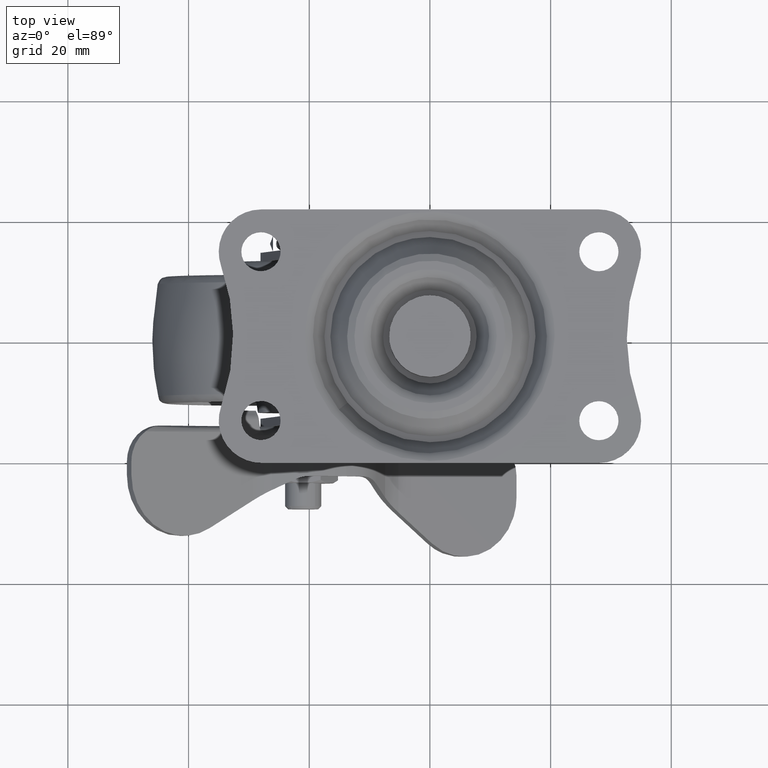
[diagram: clean part render]
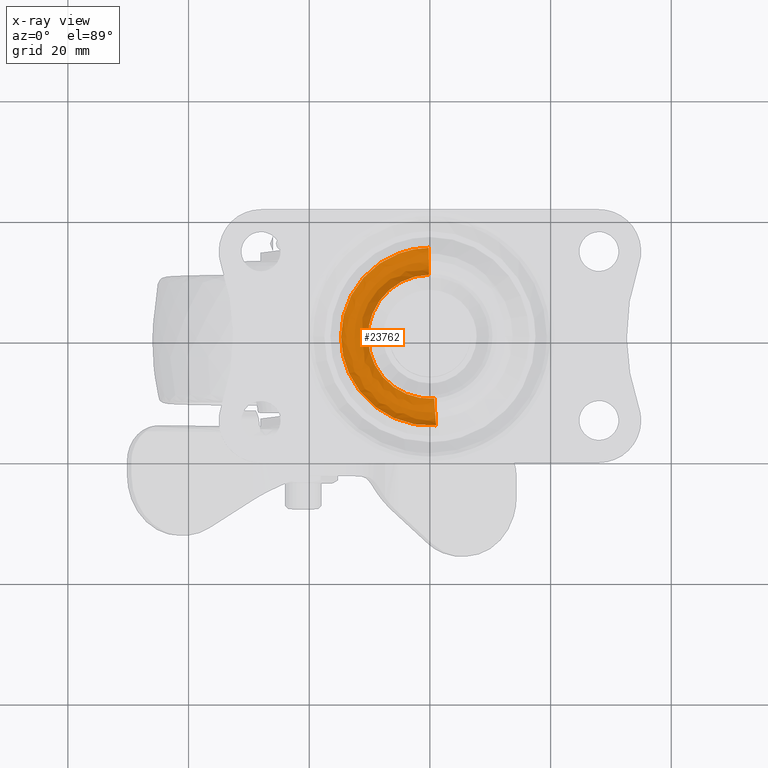
[diagram: x-ray — body ghosted, one internal face saturated and labeled with its STEP entity id]
A machine part, top view, then the same camera in x-ray: the body is ghosted and one INTERNAL B-rep face — a face not visible from any outside direction — is saturated and labeled: STEP entity #23762.
In plain terms, the highlighted face is a freeform B-spline surface patch.
Its self-contained STEP definition (entity closure, byte-faithful):
#23606=CARTESIAN_POINT('',(1.254466346812317,-14.787687954244289,-4.652776239736873));
#23607=CARTESIAN_POINT('',(1.144314758234576,-14.795387920818039,-4.652776239736872));
#23608=CARTESIAN_POINT('',(0.611126244214008,-14.832659591508182,-4.652776239736873));
#23609=CARTESIAN_POINT('',(0.186469575715161,-14.837996265502614,-4.652776239736872));
#23610=CARTESIAN_POINT('',(-14.651526689787447,-15.024465841217767,-4.652776239736872));
#23611=CARTESIAN_POINT('',(-14.837996265502614,-0.186469575715162,-4.652776239736872));
#23612=CARTESIAN_POINT('',(-15.024465841217767,14.651526689787447,-4.652776239736872));
#23613=CARTESIAN_POINT('',(-0.079756804454429,14.839337328327018,-4.652776239736872));
#23614=CARTESIAN_POINT('',(0.026322067867619,14.840670424923106,-4.652776239736872));
#23615=CARTESIAN_POINT('',(1.204622691708250,-14.200129411880141,-6.299998449999986));
#23616=CARTESIAN_POINT('',(1.098847751259958,-14.207523436027305,-6.299998449999987));
#23617=CARTESIAN_POINT('',(0.586844392557286,-14.243314193097278,-6.299998449999985));
#23618=CARTESIAN_POINT('',(0.179060588425095,-14.248438825263197,-6.299998449999985));
#23619=CARTESIAN_POINT('',(-14.069378236838102,-14.427499413688293,-6.299998449999985));
#23620=CARTESIAN_POINT('',(-14.248438825263197,-0.179060588425096,-6.299998449999985));
#23621=CARTESIAN_POINT('',(-14.427499413688293,14.069378236838102,-6.299998449999985));
#23622=CARTESIAN_POINT('',(-0.076587830919562,14.249726603698546,-6.299998449999987));
#23623=CARTESIAN_POINT('',(0.025276214325391,14.251006732427351,-6.299998449999986));
#23624=CARTESIAN_POINT('',(1.056718910170037,-12.456635077259264,-6.299998449999986));
#23625=CARTESIAN_POINT('',(0.963931035125682,-12.463121261848302,-6.299998449999986));
#23626=CARTESIAN_POINT('',(0.514791536977557,-12.494517623601629,-6.299998449999984));
#23627=CARTESIAN_POINT('',(0.157075498541910,-12.499013052547699,-6.299998449999984));
#23628=CARTESIAN_POINT('',(-12.341937554005787,-12.656088551089608,-6.299998449999984));
#23629=CARTESIAN_POINT('',(-12.499013052547699,-0.157075498541911,-6.299998449999984));
#23630=CARTESIAN_POINT('',(-12.656088551089608,12.341937554005787,-6.299998449999984));
#23631=CARTESIAN_POINT('',(-0.067184363849928,12.500142717324985,-6.299998449999986));
#23632=CARTESIAN_POINT('',(0.022172796377657,12.501265671628021,-6.299998449999987));
#23633=CARTESIAN_POINT('',(0.908815101572299,-10.713140423659885,-6.299998449999985));
#23634=CARTESIAN_POINT('',(0.829014294307911,-10.718718768524703,-6.299998449999986));
#23635=CARTESIAN_POINT('',(0.442738668215502,-10.745720734157418,-6.299998449999984));
#23636=CARTESIAN_POINT('',(0.135090404636476,-10.749586959768518,-6.299998449999984));
#23637=CARTESIAN_POINT('',(-10.614496555132041,-10.884677364404993,-6.299998449999986));
#23638=CARTESIAN_POINT('',(-10.749586959768518,-0.135090404636476,-6.299998449999984));
#23639=CARTESIAN_POINT('',(-10.884677364404995,10.614496555132041,-6.299998449999986));
#23640=CARTESIAN_POINT('',(-0.057780895059896,10.750558510858809,-6.299998449999984));
#23641=CARTESIAN_POINT('',(0.019069377862141,10.751524290707311,-6.299998449999984));
#23642=CARTESIAN_POINT('',(0.858971461335551,-10.125582056552167,-4.652775836811488));
#23643=CARTESIAN_POINT('',(0.783547300895151,-10.130854459081652,-4.652775836811488));
#23644=CARTESIAN_POINT('',(0.418456823801548,-10.156375511535927,-4.652775836811485));
#23645=CARTESIAN_POINT('',(0.127681419556355,-10.160029695381764,-4.652775836811486));
#23646=CARTESIAN_POINT('',(-10.032348275825409,-10.287711114938121,-4.652775836811485));
#23647=CARTESIAN_POINT('',(-10.160029695381764,-0.127681419556356,-4.652775836811486));
#23648=CARTESIAN_POINT('',(-10.287711114938121,10.032348275825408,-4.652775836811485));
#23649=CARTESIAN_POINT('',(-0.054611922470268,10.160947962098884,-4.652775836811486));
#23650=CARTESIAN_POINT('',(0.018023524631869,10.161860774095915,-4.652775836811486));
#23658=(BOUNDED_SURFACE()B_SPLINE_SURFACE(2,2,((#23606,#23615,#23624,#23633,#23642),(#23607,#23616,#23625,#23634,#23643),(#23608,#23617,#23626,#23635,#23644),(#23609,#23618,#23627,#23636,#23645),(#23610,#23619,#23628,#23637,#23646),(#23611,#23620,#23629,#23638,#23647),(#23612,#23621,#23630,#23639,#23648),(#23613,#23622,#23631,#23640,#23649),(#23614,#23623,#23632,#23641,#23650)),.UNSPECIFIED.,.F.,.F.,.U.)B_SPLINE_SURFACE_WITH_KNOTS((3,1,2,2,1,3),(3,2,3),(0.0,0.250781733737984,1.234234331858554,25.820572732232261,50.406911132605977,50.657721608783667),(0.0,3.147990039660571,6.295980542036234),.UNSPECIFIED.)GEOMETRIC_REPRESENTATION_ITEM()RATIONAL_B_SPLINE_SURFACE(((0.938528616179329,0.780925577206086,0.972008777248647,0.780925549119250,0.938528662510680),(0.941182467316013,0.783133778634372,0.974757299301038,0.783133750468115,0.941182513778375),(0.954243522982692,0.794001547884652,0.988284282420452,0.794001519327524,0.954243570089824),(0.965555700881543,0.803414120823643,1.0,0.803414091927982,0.965555748547112),(0.682750983706669,0.568099572935426,0.707106781186548,0.568099552503108,0.682751017411316),(0.965555700881543,0.803414120823643,1.0,0.803414091927982,0.965555748547112),(0.682750983706669,0.568099572935426,0.707106781186548,0.568099552503108,0.682751017411316),(0.968440652053404,0.805814614660760,1.002987866126446,0.805814585678763,0.968440699861391),(0.971325603225265,0.808215108497878,1.005975732252892,0.808215079429544,0.971325651175670)))REPRESENTATION_ITEM('')SURFACE());
#23659=CARTESIAN_POINT('',(-10.264692522078940,0.0,-4.899998799999991));
#23660=VERTEX_POINT('',#23659);
#23661=CARTESIAN_POINT('',(0.715790249355298,-10.239702987608419,-4.899994822422636));
#23662=VERTEX_POINT('',#23661);
#23663=CARTESIAN_POINT('',(-10.264692522078940,0.0,-4.899998799999991));
#23664=CARTESIAN_POINT('',(-10.264764459553311,-0.701668213624318,-4.899998673236914));
#23665=CARTESIAN_POINT('',(-10.111309381801920,-2.192724466481469,-4.899998374101704));
#23666=CARTESIAN_POINT('',(-9.443867505465473,-4.203890323261155,-4.899997881408207));
#23667=CARTESIAN_POINT('',(-8.361529806864683,-6.070352202730941,-4.899997334473521));
#23668=CARTESIAN_POINT('',(-7.104764043567214,-7.491220087471522,-4.899996834252947));
#23669=CARTESIAN_POINT('',(-5.611510191380226,-8.651971861778069,-4.899996335210314));
#23670=CARTESIAN_POINT('',(-4.293541924561294,-9.362008436023400,-4.899995951564512));
#23671=CARTESIAN_POINT('',(-2.810245907119176,-9.908794888345817,-4.899995565381968));
#23672=CARTESIAN_POINT('',(-1.217634604837215,-10.251898100725921,-4.899995194821301));
#23673=CARTESIAN_POINT('',(0.059583548785452,-10.285648584790360,-4.899994941261431));
#23674=CARTESIAN_POINT('',(0.715790249355298,-10.239702987608419,-4.899994822422636));
#23675=B_SPLINE_CURVE_WITH_KNOTS('',3,(#23663,#23664,#23665,#23666,#23667,#23668,#23669,#23670,#23671,#23672,#23673,#23674),.UNSPECIFIED.,.F.,.U.,(4,1,1,1,1,1,1,1,1,4),(0.000000077285470,2.105020683642975,4.473189182731669,6.315105143934741,8.551658459804285,10.130415157014911,11.972340766568649,13.024868409543011,14.866787317854390,16.840227094994209),.UNSPECIFIED.);
#23676=EDGE_CURVE('',#23660,#23662,#23675,.T.);
#23677=ORIENTED_EDGE('',*,*,#23676,.F.);
#23678=CARTESIAN_POINT('',(-0.128986511137416,10.263880135452430,-4.899994822370571));
#23679=VERTEX_POINT('',#23678);
#23680=CARTESIAN_POINT('',(-0.128986511137416,10.263880135452430,-4.899994822370571));
#23681=CARTESIAN_POINT('',(-1.170278961880329,10.251246656815670,-4.899995026602829));
#23682=CARTESIAN_POINT('',(-2.957475900534001,9.953389727071588,-4.899995431318069));
#23683=CARTESIAN_POINT('',(-5.132005703718651,8.965182780972979,-4.899996046529076));
#23684=CARTESIAN_POINT('',(-6.491670820165065,7.991807605723735,-4.899996500947593));
#23685=CARTESIAN_POINT('',(-7.584857034146079,6.962841358035505,-4.899996914642123));
#23686=CARTESIAN_POINT('',(-8.638616285918880,5.664471350138951,-4.899997373555547));
#23687=CARTESIAN_POINT('',(-9.579888184655799,3.886908578197405,-4.899997904693205));
#23688=CARTESIAN_POINT('',(-10.146444517209311,1.916011221338229,-4.899998401161585));
#23689=CARTESIAN_POINT('',(-10.264751998351560,0.624786978741892,-4.899998677426306));
#23690=CARTESIAN_POINT('',(-10.264692522078940,0.0,-4.899998799999991));
#23691=B_SPLINE_CURVE_WITH_KNOTS('',3,(#23680,#23681,#23682,#23683,#23684,#23685,#23686,#23687,#23688,#23689,#23690),.UNSPECIFIED.,.F.,.U.,(4,1,1,1,1,1,1,1,4),(0.000000090298995,3.123983173237352,5.373288687253954,7.122718820225469,8.122357970410032,9.871791818538391,12.121098220110831,14.120481603271219,15.994848920476990),.UNSPECIFIED.);
#23692=EDGE_CURVE('',#23679,#23660,#23691,.T.);
#23693=ORIENTED_EDGE('',*,*,#23692,.F.);
#23694=CARTESIAN_POINT('',(-0.185139326916579,14.734146031416220,-4.899995346601386));
#23695=VERTEX_POINT('',#23694);
#23696=CARTESIAN_POINT('',(-0.185139326916579,14.734146031416220,-4.899995346601386));
#23697=CARTESIAN_POINT('',(-0.183396109134275,14.595370319236920,-5.186808996460331));
#23698=CARTESIAN_POINT('',(-0.179052075354861,14.249546413806399,-5.646468693104300));
#23699=CARTESIAN_POINT('',(-0.170470411021972,13.566369250483801,-6.099800437616441));
#23700=CARTESIAN_POINT('',(-0.162360263678256,12.920729052779890,-6.291366233176120));
#23701=CARTESIAN_POINT('',(-0.154683551499559,12.309594167212280,-6.312687587570083));
#23702=CARTESIAN_POINT('',(-0.147483862640503,11.736434600378130,-6.206295125393909));
#23703=CARTESIAN_POINT('',(-0.139806222721994,11.125225858415840,-5.927251752629280));
#23704=CARTESIAN_POINT('',(-0.133282001224087,10.605839529227209,-5.474469038483633));
#23705=CARTESIAN_POINT('',(-0.130097666063765,10.352337996452000,-5.082389885048709));
#23706=CARTESIAN_POINT('',(-0.128986511137416,10.263880135452430,-4.899994822370571));
#23707=B_SPLINE_CURVE_WITH_KNOTS('',3,(#23696,#23697,#23698,#23699,#23700,#23701,#23702,#23703,#23704,#23705,#23706),.UNSPECIFIED.,.F.,.U.,(4,1,1,1,1,1,1,1,4),(0.000000429312260,0.955763174757180,1.694315181850457,2.432863782338903,2.954116779215959,3.518920164622878,4.170606925474724,4.952639554263558,5.560809107563340),.UNSPECIFIED.);
#23708=EDGE_CURVE('',#23695,#23679,#23707,.T.);
#23709=ORIENTED_EDGE('',*,*,#23708,.F.);
#23710=CARTESIAN_POINT('',(-14.735307477921060,0.0,-4.899998799999991));
#23711=VERTEX_POINT('',#23710);
#23712=CARTESIAN_POINT('',(-14.735307477921060,0.0,-4.899998799999991));
#23713=CARTESIAN_POINT('',(-14.735543321855150,1.136103055505159,-4.899998665214522));
#23714=CARTESIAN_POINT('',(-14.471244696584071,3.408208147862216,-4.899998364629489));
#23715=CARTESIAN_POINT('',(-13.488908124046320,6.125429247226488,-4.899997927085323));
#23716=CARTESIAN_POINT('',(-12.260866893828620,8.252558954467776,-4.899997530771075));
#23717=CARTESIAN_POINT('',(-11.088609306459279,9.771269631871341,-4.899997213190294));
#23718=CARTESIAN_POINT('',(-9.639917050260950,11.202946838838010,-4.899996873544197));
#23719=CARTESIAN_POINT('',(-7.772377364907362,12.609921340756150,-4.899996487748455));
#23720=CARTESIAN_POINT('',(-5.627510279227006,13.696925184850890,-4.899996107423745));
#23721=CARTESIAN_POINT('',(-2.992767165136628,14.507958829076980,-4.899995702442235));
#23722=CARTESIAN_POINT('',(-1.261370104988207,14.720824598530280,-4.899995474296047));
#23723=CARTESIAN_POINT('',(-0.185139326916579,14.734146031416220,-4.899995346601386));
#23724=B_SPLINE_CURVE_WITH_KNOTS('',3,(#23712,#23713,#23714,#23715,#23716,#23717,#23718,#23719,#23720,#23721,#23722,#23723),.UNSPECIFIED.,.F.,.U.,(4,1,1,1,1,1,1,1,1,4),(0.000000025413112,3.408282053897342,6.816606000828873,8.610461074764809,10.763066632750750,12.556870271923840,14.709484933464500,17.759027210500030,19.732263359426760,22.961165513358171),.UNSPECIFIED.);
#23725=EDGE_CURVE('',#23711,#23695,#23724,.T.);
#23726=ORIENTED_EDGE('',*,*,#23725,.F.);
#23727=CARTESIAN_POINT('',(1.027540903562693,-14.699436933436820,-4.899998800020643));
#23728=VERTEX_POINT('',#23727);
#23729=CARTESIAN_POINT('',(1.027540903562693,-14.699436933436820,-4.899998800020643));
#23730=CARTESIAN_POINT('',(0.399542938587513,-14.743347949151460,-4.899998800019211));
#23731=CARTESIAN_POINT('',(-1.019818567549266,-14.751447155497999,-4.899998800016031));
#23732=CARTESIAN_POINT('',(-3.365551972276142,-14.424622708558511,-4.899998800011181));
#23733=CARTESIAN_POINT('',(-5.650839028567641,-13.680606241127069,-4.899998800006782));
#23734=CARTESIAN_POINT('',(-7.751629690437907,-12.591815137077750,-4.899998800003225));
#23735=CARTESIAN_POINT('',(-9.547264766303581,-11.303604089017030,-4.899998800000441));
#23736=CARTESIAN_POINT('',(-11.052317747633920,-9.816605635608807,-4.899998799998591));
#23737=CARTESIAN_POINT('',(-12.452034738994710,-7.989456202969178,-4.899998799997292));
#23738=CARTESIAN_POINT('',(-13.588818270625090,-5.907933032731727,-4.899998799996652));
#23739=CARTESIAN_POINT('',(-14.505384830531341,-3.116162867972832,-4.899998799997566));
#23740=CARTESIAN_POINT('',(-14.735547671957841,-1.133198550148187,-4.899998799998827));
#23741=CARTESIAN_POINT('',(-14.735307477921060,0.0,-4.899998799999991));
#23742=B_SPLINE_CURVE_WITH_KNOTS('',3,(#23729,#23730,#23731,#23732,#23733,#23734,#23735,#23736,#23737,#23738,#23739,#23740,#23741),.UNSPECIFIED.,.F.,.U.,(4,1,1,1,1,1,1,1,1,1,4),(0.000000094225310,1.888600628553828,4.249422294053922,7.082398933627168,9.065472279104050,11.331877115820721,13.692625929121601,15.392384391936931,18.225369899779899,20.775034342830661,24.174583734155330),.UNSPECIFIED.);
#23743=EDGE_CURVE('',#23728,#23711,#23742,.T.);
#23744=ORIENTED_EDGE('',*,*,#23743,.F.);
#23745=CARTESIAN_POINT('',(1.027540903562693,-14.699436933436820,-4.899998800020643));
#23746=CARTESIAN_POINT('',(1.020493888487974,-14.598626197182011,-5.108493986019944));
#23747=CARTESIAN_POINT('',(1.005130639658712,-14.378847978942041,-5.436107637283479));
#23748=CARTESIAN_POINT('',(0.970771787029278,-13.887329065610320,-5.889034999431057));
#23749=CARTESIAN_POINT('',(0.933558239291781,-13.354972450811680,-6.167481463782836));
#23750=CARTESIAN_POINT('',(0.894929066706000,-12.802364684547120,-6.290321549404165));
#23751=CARTESIAN_POINT('',(0.861535731278702,-12.324657935184071,-6.311287597983285));
#23752=CARTESIAN_POINT('',(0.820320555140125,-11.735056221892760,-6.222979392123914));
#23753=CARTESIAN_POINT('',(0.780278098085488,-11.162230786582761,-5.960691957837761));
#23754=CARTESIAN_POINT('',(0.741961055325815,-10.614088184110029,-5.506453984977139));
#23755=CARTESIAN_POINT('',(0.724155356149760,-10.359369616936551,-5.147622575141075));
#23756=CARTESIAN_POINT('',(0.715790249355298,-10.239702987608419,-4.899994822422636));
#23757=B_SPLINE_CURVE_WITH_KNOTS('',3,(#23745,#23746,#23747,#23748,#23749,#23750,#23751,#23752,#23753,#23754,#23755,#23756),.UNSPECIFIED.,.F.,.U.,(4,1,1,1,1,1,1,1,1,4),(0.000000429305405,0.695064314225530,1.172979065722215,1.998421213360134,2.476348107375229,2.867241370319941,3.432044647186381,4.257494927803458,4.735405345790423,5.560805268948183),.UNSPECIFIED.);
#23758=EDGE_CURVE('',#23728,#23662,#23757,.T.);
#23759=ORIENTED_EDGE('',*,*,#23758,.T.);
#23760=EDGE_LOOP('',(#23677,#23693,#23709,#23726,#23744,#23759));
#23761=FACE_OUTER_BOUND('',#23760,.T.);
#23762=ADVANCED_FACE('',(#23761),#23658,.F.);